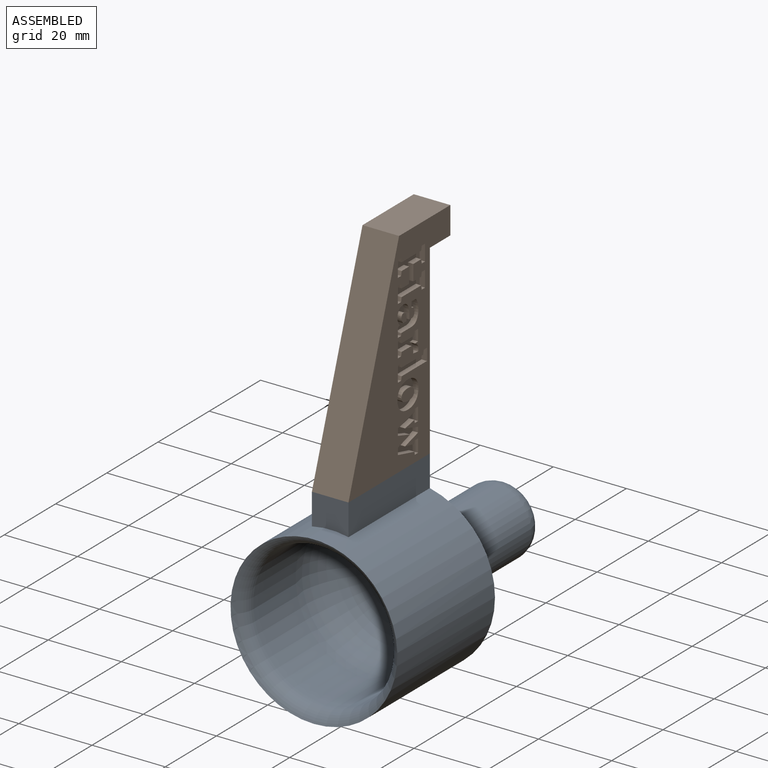
[diagram: assembled view]
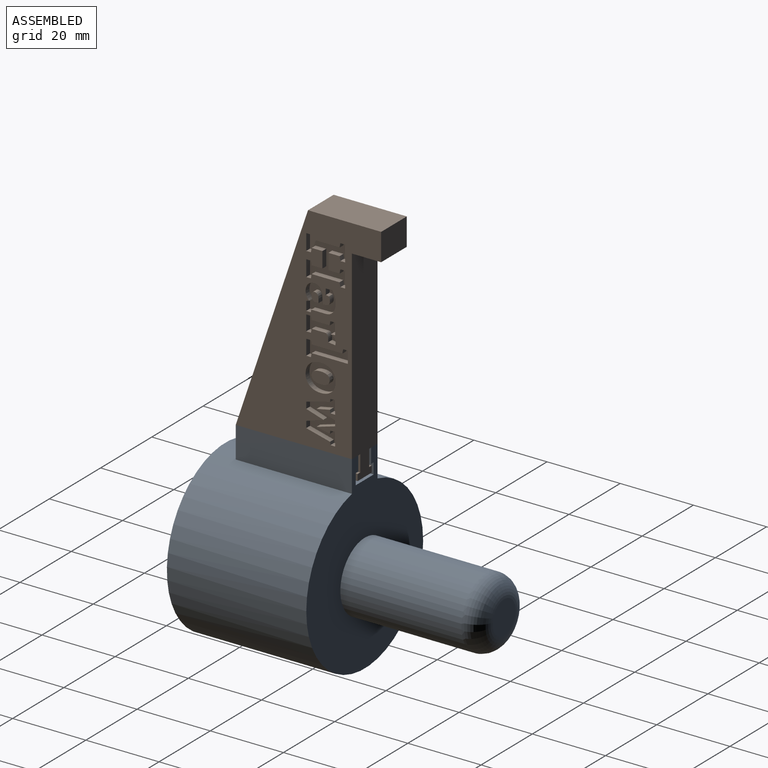
[diagram: assembled view, second angle]
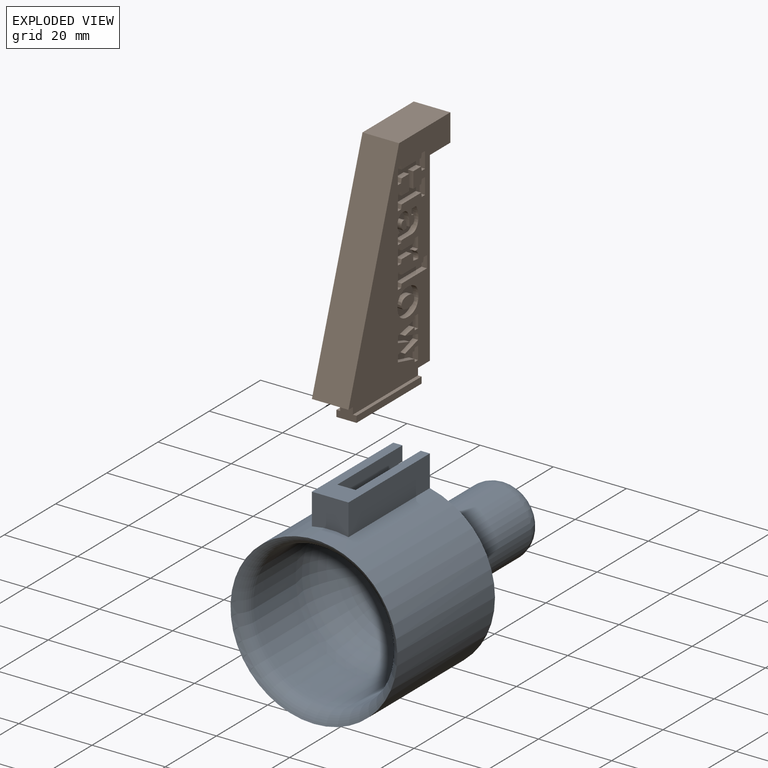
[diagram: exploded view]
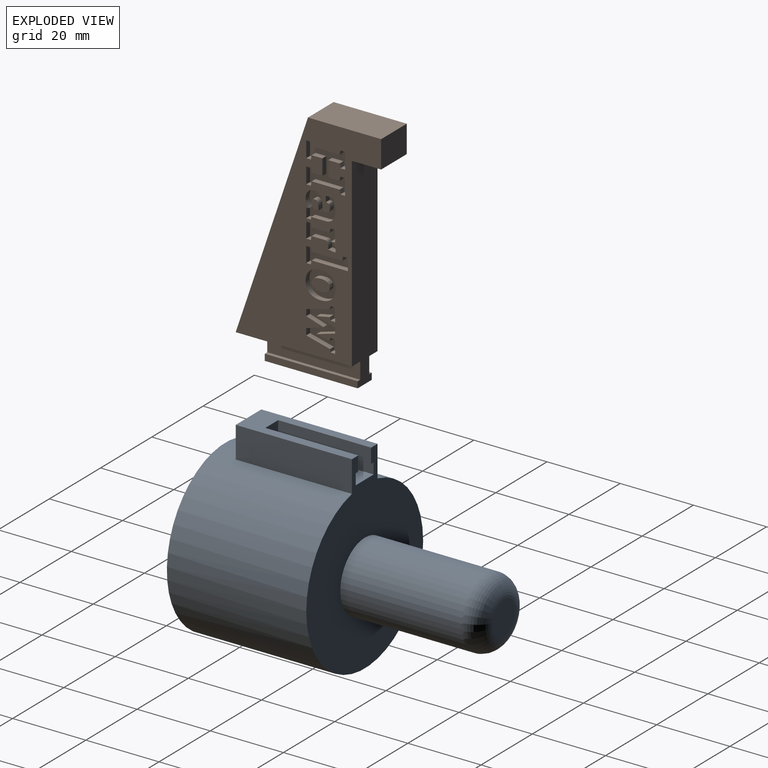
[diagram: exploded view, second angle]
ASSEMBLY  parts=2 mates=3
PART A: 21 faces, bbox 57.6x53.7x76.6 mm
  f0: plane 31.75x10mm, normal (-1,0,0), area 190.5mm2, adj f3,f10,f11,f12,f13,f14,f20
  f1: cylinder r=19.8mm len=39.6mm, axis (0,0,-1), area 2054.9mm2, adj f8,f9
  f2: cylinder r=22.8mm len=45.6mm, axis (0,0,-1), area 5138mm2, adj f3,f8,f10,f11,f12
  f3: plane 53.6x45.6mm, normal (0,0,-1), area 1388.9mm2, adj f0,f2,f5,f10,f11,f13,f14,f15
  f4: plane 9.6x9.6mm, normal (0,0,1), area 72.4mm2, adj f9
  f5: cylinder r=9.53mm len=33.1mm, axis (0,0,1), area 1980.9mm2, adj f3,f7
  f6: plane 9.05x9.05mm, normal (0,0,-1), area 64.3mm2, adj f7
  f7: torus R=4.53mm, axis (0,0,-1), area 380.4mm2, adj f5,f6
  f8: torus R=24.8mm, axis (0,0,1), area 759.2mm2, adj f1,f2
  f9: torus R=4.8mm, axis (0,0,-1), area 2124.3mm2, adj f1,f4
  f10: plane 31.75x8.56mm, normal (0,1,0), area 271.6mm2, adj f0,f2,f3,f12
  f11: plane 31.75x8.56mm, normal (0,-1,0), area 271.6mm2, adj f0,f2,f3,f12
  f12: plane 10x8.56mm, normal (0,0,1), area 81.8mm2, adj f0,f2,f10,f11
  f13: plane 25.4x4mm, normal (0,1,0), area 101.6mm2, adj f0,f3,f19,f20
  f14: plane 25.4x4mm, normal (0,-1,0), area 101.6mm2, adj f0,f3,f15,f20
  f15: plane 25.4x1mm, normal (1,0,0), area 25.4mm2, adj f3,f14,f16,f20
  f16: plane 25.4x3mm, normal (0,-1,0), area 76.2mm2, adj f3,f15,f17,f20
  f17: plane 25.4x7mm, normal (-1,0,0), area 177.8mm2, adj f3,f16,f18,f20
  f18: plane 25.4x3mm, normal (0,1,0), area 76.2mm2, adj f3,f17,f19,f20
  f19: plane 25.4x1mm, normal (1,0,0), area 25.4mm2, adj f3,f13,f18,f20
  f20: plane 7x7mm, normal (0,0,-1), area 41mm2, adj f0,f13,f14,f15,f16,f17,f18,f19
PART B: 304 faces, bbox 64.6x10x39.8 mm
  f0: plane 58.3x39.75mm, normal (0,-1,0), area 1073.1mm2, adj f2,f3,f4,f5,f6,f7,f167,f168
  f1: plane 58.3x39.75mm, normal (0,1,0), area 1073.1mm2, adj f2,f3,f4,f5,f6,f7,f23,f24
  f2: plane 31.75x10mm, normal (1,0,0), area 228.6mm2, adj f0,f1,f3,f7,f8,f14,f15
  f3: plane 58.3x19.75mm, normal (-0.32,0,0.95), area 615.5mm2, adj f0,f1,f2,f4
  f4: plane 20x10mm, normal (-1,0,0), area 200mm2, adj f0,f1,f3,f5
  f5: plane 10x7.5mm, normal (0,0,-1), area 75mm2, adj f0,f1,f4,f6
  f6: plane 10x8mm, normal (1,0,0), area 80mm2, adj f0,f1,f5,f7
  f7: plane 57.05x10mm, normal (0,0,-1), area 533.4mm2, adj f0,f1,f2,f6,f8,f9,f10,f11
  f8: plane 25.4x4.5mm, normal (0,1,0), area 114.3mm2, adj f2,f7,f9,f15
  f9: plane 25.4x1mm, normal (-1,0,0), area 25.4mm2, adj f7,f8,f10,f15
  f10: plane 25.4x1.75mm, normal (0,1,0), area 44.5mm2, adj f7,f9,f11,f15
  f11: plane 25.4x5.5mm, normal (1,0,0), area 139.7mm2, adj f7,f10,f12,f15
  f12: plane 25.4x1.75mm, normal (0,-1,0), area 44.5mm2, adj f7,f11,f13,f15
  f13: plane 25.4x1mm, normal (-1,0,0), area 25.4mm2, adj f7,f12,f14,f15
  f14: plane 25.4x4.5mm, normal (0,-1,0), area 114.3mm2, adj f2,f7,f13,f15
  f15: plane 6.25x5.5mm, normal (0,0,1), area 25.4mm2, adj f2,f8,f9,f10,f11,f12,f13,f14
  f16: extruded ~1.5x0.88mm, area 1.4mm2, adj f17,f50,f51,f158
  f17: extruded ~1.5x0.72mm, area 1.2mm2, adj f16,f18,f51,f158
  f18: extruded ~1.5x0.63mm, area 1.1mm2, adj f17,f19,f51,f158
  f19: extruded ~1.5x0.76mm, area 1.3mm2, adj f18,f20,f51,f158
  f20: extruded ~1.5x1.03mm, area 1.6mm2, adj f19,f21,f51,f158
  f21: plane 1.5x1.09mm, normal (0,0,-1), area 1.6mm2, adj f20,f22,f51,f158
  f22: plane 1.5x1.2mm, normal (1,0,0), area 1.8mm2, adj f21,f50,f51,f158
  f23: extruded ~1.5x0.41mm, area 0.6mm2, adj f1,f24,f49,f51
  f24: plane 2.46x1.5mm, normal (0,0,-1), area 3.7mm2, adj f1,f23,f25,f51
  f25: plane 1.5x1.28mm, normal (-1,0,0), area 1.9mm2, adj f1,f24,f26,f51
  f26: plane 1.5x0.65mm, normal (-0.13,0,0.99), area 1mm2, adj f1,f25,f27,f51
  f27: extruded ~1.5x0.31mm, area 0.5mm2, adj f1,f26,f28,f51
  f28: extruded ~1.5x0.34mm, area 0.5mm2, adj f1,f27,f29,f51
  f29: plane 3.26x1.5mm, normal (-1,0,0), area 4.9mm2, adj f1,f28,f30,f51
  f30: extruded ~2.05x1.5mm, area 3.5mm2, adj f1,f29,f31,f51
  f31: extruded ~2.38x1.5mm, area 3.8mm2, adj f1,f30,f32,f51
  f32: extruded ~1.64x1.5mm, area 2.5mm2, adj f1,f31,f33,f51
  f33: extruded ~1.5x1.34mm, area 2.2mm2, adj f1,f32,f34,f51
  f34: plane 1.75x1.5mm, normal (1,0,0), area 2.6mm2, adj f1,f33,f35,f51
  f35: plane 1.6x1.5mm, normal (0,0,-1), area 2.4mm2, adj f1,f34,f36,f51
  f36: plane 1.5x0.85mm, normal (-0.99,0,-0.16), area 1.3mm2, adj f1,f35,f37,f51
  f37: extruded ~1.5x0.46mm, area 0.8mm2, adj f1,f36,f38,f51
  f38: extruded ~1.5x0.65mm, area 1mm2, adj f1,f37,f39,f51
  f39: extruded ~1.5x0.97mm, area 1.6mm2, adj f1,f38,f40,f51
  f40: extruded ~1.5x0.88mm, area 1.5mm2, adj f1,f39,f41,f51
  f41: plane 1.5x0.78mm, normal (1,0,0), area 1.2mm2, adj f1,f40,f42,f51
  f42: plane 1.5x1.09mm, normal (0,0,1), area 1.6mm2, adj f1,f41,f43,f51
  f43: extruded ~2.61x1.5mm, area 4.1mm2, adj f1,f42,f44,f51
  f44: extruded ~1.71x1.5mm, area 3mm2, adj f1,f43,f45,f51
  f45: extruded ~1.72x1.5mm, area 2.9mm2, adj f1,f44,f46,f51
  f46: extruded ~1.84x1.5mm, area 3mm2, adj f1,f45,f47,f51
  f47: extruded ~1.5x1.24mm, area 1.9mm2, adj f1,f46,f48,f51
  f48: extruded ~1.5x0.92mm, area 1.8mm2, adj f1,f47,f49,f51
  f49: extruded ~1.5x0.42mm, area 0.6mm2, adj f1,f23,f48,f51
  f50: extruded ~1.5x0.61mm, area 1.2mm2, adj f16,f22,f51,f158
  f51: plane 8.19x7.4mm, normal (0,1,0), area 38.4mm2, adj f16,f17,f18,f19,f20,f21,f22,f23
  f52: plane 1.5x0.8mm, normal (-0.13,0,-0.99), area 1.2mm2, adj f1,f53,f75,f76
  f53: plane 1.5x1.28mm, normal (-1,0,0), area 1.9mm2, adj f1,f52,f54,f76
  f54: plane 3.58x1.5mm, normal (0,0,1), area 5.4mm2, adj f1,f53,f55,f76
  f55: plane 1.5x1.28mm, normal (1,0,0), area 1.9mm2, adj f1,f54,f56,f76
  f56: plane 1.5x0.85mm, normal (0.19,0,-0.98), area 1.3mm2, adj f1,f55,f57,f76
  f57: plane 3.62x1.5mm, normal (0.98,0,0.2), area 5.5mm2, adj f1,f56,f58,f76
  f58: plane 1.5x0.04mm, normal (0,0,1), area 0.1mm2, adj f1,f57,f59,f76
  f59: plane 5.07x1.5mm, normal (-0.96,0,0.28), area 7.9mm2, adj f1,f58,f60,f76
  f60: plane 1.5x1.43mm, normal (0,0,1), area 2.1mm2, adj f1,f59,f61,f76
  f61: plane 5.05x1.5mm, normal (0.96,0,0.28), area 7.9mm2, adj f1,f60,f62,f76
  f62: plane 1.5x0.04mm, normal (0,0,1), area 0.1mm2, adj f1,f61,f63,f76
  f63: plane 3.61x1.5mm, normal (-0.98,0,0.2), area 5.5mm2, adj f1,f62,f64,f76
  f64: plane 1.5x0.84mm, normal (-0.19,0,-0.98), area 1.3mm2, adj f1,f63,f65,f76
  f65: plane 1.5x1.28mm, normal (-1,0,0), area 1.9mm2, adj f1,f64,f66,f76
  f66: plane 3.57x1.5mm, normal (0,0,1), area 5.4mm2, adj f1,f65,f67,f76
  f67: plane 1.5x1.28mm, normal (1,0,0), area 1.9mm2, adj f1,f66,f68,f76
  f68: plane 1.5x0.8mm, normal (0.13,0,-0.99), area 1.2mm2, adj f1,f67,f69,f76
  f69: plane 6.51x1.65mm, normal (0.97,0,-0.25), area 10.1mm2, adj f1,f68,f70,f76
  f70: plane 1.77x1.5mm, normal (0,0,-1), area 2.7mm2, adj f1,f69,f71,f76
  f71: plane 4.7x1.5mm, normal (-0.95,0,-0.3), area 7.4mm2, adj f1,f70,f72,f76
  f72: plane 1.5x0.04mm, normal (0,0,-1), area 0.1mm2, adj f1,f71,f73,f76
  f73: plane 4.7x1.5mm, normal (0.95,0,-0.3), area 7.4mm2, adj f1,f72,f74,f76
  f74: plane 1.78x1.5mm, normal (0,0,-1), area 2.7mm2, adj f1,f73,f75,f76
  f75: plane 6.51x1.65mm, normal (-0.97,0,-0.25), area 10.1mm2, adj f1,f52,f74,f76
  f76: plane 11.42x7.89mm, normal (0,1,0), area 51.4mm2, adj f52,f53,f54,f55,f56,f57,f58,f59
  f77: plane 1.5x1.28mm, normal (1,0,0), area 1.9mm2, adj f1,f78,f86,f87
  f78: plane 1.5x1.14mm, normal (0.19,0,-0.98), area 1.7mm2, adj f1,f77,f79,f87
  f79: plane 8.38x1.5mm, normal (1,0,0), area 12.6mm2, adj f1,f78,f80,f87
  f80: plane 1.5x1.03mm, normal (0.21,0,0.98), area 1.6mm2, adj f1,f79,f81,f87
  f81: plane 1.5x1.28mm, normal (1,0,0), area 1.9mm2, adj f1,f80,f82,f87
  f82: plane 4.19x1.5mm, normal (0,0,-1), area 6.3mm2, adj f1,f81,f83,f87
  f83: plane 1.5x1.28mm, normal (-1,0,0), area 1.9mm2, adj f1,f82,f84,f87
  f84: plane 1.5x1.03mm, normal (-0.21,0,0.98), area 1.6mm2, adj f1,f83,f85,f87
  f85: plane 9.88x1.5mm, normal (-1,0,0), area 14.8mm2, adj f1,f84,f86,f87
  f86: plane 3.27x1.5mm, normal (0,0,1), area 4.9mm2, adj f1,f77,f85,f87
  f87: plane 11.38x4.3mm, normal (0,1,0), area 28.7mm2, adj f77,f78,f79,f80,f81,f82,f83,f84
  f88: plane 1.5x1.02mm, normal (0.21,0,0.98), area 1.6mm2, adj f1,f89,f106,f107
  f89: plane 1.5x1.28mm, normal (1,0,0), area 1.9mm2, adj f1,f88,f90,f107
  f90: plane 4.17x1.5mm, normal (0,0,-1), area 6.3mm2, adj f1,f89,f91,f107
  f91: plane 1.5x1.28mm, normal (-1,0,0), area 1.9mm2, adj f1,f90,f92,f107
  f92: plane 1.5x1.02mm, normal (-0.21,0,0.98), area 1.6mm2, adj f1,f91,f93,f107
  f93: plane 3.83x1.5mm, normal (-1,0,0), area 5.8mm2, adj f1,f92,f94,f107
  f94: extruded ~1.5x0.52mm, area 1.1mm2, adj f1,f93,f95,f107
  f95: extruded ~1.5x0.77mm, area 1.2mm2, adj f1,f94,f96,f107
  f96: plane 1.5x0.88mm, normal (0.02,0,-1), area 1.3mm2, adj f1,f95,f97,f107
  f97: plane 1.94x1.5mm, normal (-0.99,0,-0.12), area 2.9mm2, adj f1,f96,f98,f107
  f98: extruded ~1.5x0.31mm, area 0.5mm2, adj f1,f97,f99,f107
  f99: extruded ~1.5x0.35mm, area 0.5mm2, adj f1,f98,f100,f107
  f100: extruded ~1.5x1.01mm, area 1.6mm2, adj f1,f99,f101,f107
  f101: extruded ~1.5x0.95mm, area 1.8mm2, adj f1,f100,f102,f107
  f102: plane 1.5x1.15mm, normal (-1,0,0.08), area 1.7mm2, adj f1,f101,f103,f107
  f103: plane 3.11x1.5mm, normal (0,0,1), area 4.7mm2, adj f1,f102,f104,f107
  f104: plane 1.5x1.28mm, normal (1,0,0), area 1.9mm2, adj f1,f103,f105,f107
  f105: plane 1.5x1.13mm, normal (0.19,0,-0.98), area 1.7mm2, adj f1,f104,f106,f107
  f106: plane 4.89x1.5mm, normal (1,0,0), area 7.3mm2, adj f1,f88,f105,f107
  f107: plane 8.04x5.6mm, normal (0,1,0), area 25.2mm2, adj f88,f89,f90,f91,f92,f93,f94,f95
  f108: extruded ~1.73x1.5mm, area 2.7mm2, adj f109,f127,f128,f159
  f109: plane 1.5x0.15mm, normal (-1,0,0), area 0.2mm2, adj f108,f110,f128,f159
  f110: extruded ~1.71x1.5mm, area 2.7mm2, adj f109,f111,f128,f159
  f111: extruded ~1.5x1.21mm, area 2.2mm2, adj f110,f112,f128,f159
  f112: extruded ~1.5x1.22mm, area 2.2mm2, adj f111,f113,f128,f159
  f113: extruded ~1.71x1.5mm, area 2.7mm2, adj f112,f114,f128,f159
  f114: plane 1.5x0.15mm, normal (1,0,0), area 0.2mm2, adj f113,f115,f128,f159
  f115: extruded ~1.73x1.5mm, area 2.7mm2, adj f114,f116,f128,f159
  f116: extruded ~1.5x1.21mm, area 2.2mm2, adj f115,f127,f128,f159
  f117: extruded ~2.89x1.5mm, area 4.7mm2, adj f1,f118,f126,f128
  f118: plane 1.5x0.15mm, normal (1,0,0), area 0.2mm2, adj f1,f117,f119,f128
  f119: extruded ~2.9x1.5mm, area 4.7mm2, adj f1,f118,f120,f128
  f120: extruded ~2.75x1.5mm, area 4.6mm2, adj f1,f119,f121,f128
  f121: extruded ~2.73x1.5mm, area 4.6mm2, adj f1,f120,f122,f128
  f122: extruded ~2.9x1.5mm, area 4.7mm2, adj f1,f121,f123,f128
  f123: plane 1.5x0.15mm, normal (-1,0,0), area 0.2mm2, adj f1,f122,f124,f128
  f124: extruded ~2.9x1.5mm, area 4.7mm2, adj f1,f123,f125,f128
  f125: extruded ~2.74x1.5mm, area 4.6mm2, adj f1,f124,f126,f128
  f126: extruded ~2.73x1.5mm, area 4.6mm2, adj f1,f117,f125,f128
  f127: extruded ~1.5x1.23mm, area 2.2mm2, adj f108,f116,f128,f159
  f128: plane 8.19x7.45mm, normal (0,1,0), area 36.6mm2, adj f108,f109,f110,f111,f112,f113,f114,f115
  f129: plane 1.5x1.28mm, normal (1,0,0), area 1.9mm2, adj f1,f130,f156,f157
  f130: plane 1.5x1.13mm, normal (0.19,0,-0.98), area 1.7mm2, adj f1,f129,f131,f157
  f131: plane 7.62x1.5mm, normal (1,0,0), area 11.4mm2, adj f1,f130,f132,f157
  f132: plane 1.5x1.13mm, normal (0.19,0,0.98), area 1.7mm2, adj f1,f131,f133,f157
  f133: plane 1.5x1.28mm, normal (1,0,0), area 1.9mm2, adj f1,f132,f134,f157
  f134: plane 4.4x1.5mm, normal (0,0,-1), area 6.6mm2, adj f1,f133,f135,f157
  f135: plane 1.5x1.28mm, normal (-1,0,0), area 1.9mm2, adj f1,f134,f136,f157
  f136: plane 1.5x1.14mm, normal (-0.19,0,0.98), area 1.7mm2, adj f1,f135,f137,f157
  f137: plane 2.92x1.5mm, normal (-1,0,0), area 4.4mm2, adj f1,f136,f138,f157
  f138: plane 4.33x1.5mm, normal (0,0,-1), area 6.5mm2, adj f1,f137,f139,f157
  f139: plane 2.92x1.5mm, normal (1,0,0), area 4.4mm2, adj f1,f138,f140,f157
  f140: plane 1.5x1.14mm, normal (0.19,0,0.98), area 1.7mm2, adj f1,f139,f141,f157
  f141: plane 1.5x1.28mm, normal (1,0,0), area 1.9mm2, adj f1,f140,f142,f157
  f142: plane 4.4x1.5mm, normal (0,0,-1), area 6.6mm2, adj f1,f141,f143,f157
  f143: plane 1.5x1.28mm, normal (-1,0,0), area 1.9mm2, adj f1,f142,f144,f157
  f144: plane 1.5x1.14mm, normal (-0.19,0,0.98), area 1.7mm2, adj f1,f143,f145,f157
  f145: plane 7.62x1.5mm, normal (-1,0,0), area 11.4mm2, adj f1,f144,f146,f157
  f146: plane 1.5x1.14mm, normal (-0.19,0,-0.98), area 1.7mm2, adj f1,f145,f147,f157
  f147: plane 1.5x1.28mm, normal (-1,0,0), area 1.9mm2, adj f1,f146,f148,f157
  f148: plane 4.4x1.5mm, normal (0,0,1), area 6.6mm2, adj f1,f147,f149,f157
  f149: plane 1.5x1.28mm, normal (1,0,0), area 1.9mm2, adj f1,f148,f150,f157
  f150: plane 1.5x1.14mm, normal (0.19,0,-0.98), area 1.7mm2, adj f1,f149,f151,f157
  f151: plane 3.06x1.5mm, normal (1,0,0), area 4.6mm2, adj f1,f150,f152,f157
  f152: plane 4.33x1.5mm, normal (0,0,1), area 6.5mm2, adj f1,f151,f153,f157
  f153: plane 3.06x1.5mm, normal (-1,0,0), area 4.6mm2, adj f1,f152,f154,f157
  f154: plane 1.5x1.14mm, normal (-0.19,0,-0.98), area 1.7mm2, adj f1,f153,f155,f157
  f155: plane 1.5x1.28mm, normal (-1,0,0), area 1.9mm2, adj f1,f154,f156,f157
  f156: plane 4.4x1.5mm, normal (0,0,1), area 6.6mm2, adj f1,f129,f155,f157
  f157: plane 10.85x10.62mm, normal (0,1,0), area 64.9mm2, adj f129,f130,f131,f132,f133,f134,f135,f136
  f158: plane 2.46x1.94mm, normal (0,1,0), area 4mm2, adj f16,f17,f18,f19,f20,f21,f22,f50
  f159: plane 4.92x3.2mm, normal (0,1,0), area 13.1mm2, adj f108,f109,f110,f111,f112,f113,f114,f115
  f160: extruded ~1.5x0.88mm, area 1.4mm2, adj f161,f194,f195,f302
  f161: extruded ~1.5x0.72mm, area 1.2mm2, adj f160,f162,f195,f302
  f162: extruded ~1.5x0.63mm, area 1.1mm2, adj f161,f163,f195,f302
  f163: extruded ~1.5x0.76mm, area 1.3mm2, adj f162,f164,f195,f302
  f164: extruded ~1.5x1.03mm, area 1.6mm2, adj f163,f165,f195,f302
  f165: plane 1.5x1.09mm, normal (0,0,-1), area 1.6mm2, adj f164,f166,f195,f302
  f166: plane 1.5x1.2mm, normal (-1,0,0), area 1.8mm2, adj f165,f194,f195,f302
  f167: extruded ~1.5x0.41mm, area 0.6mm2, adj f0,f168,f193,f195
  f168: plane 2.46x1.5mm, normal (0,0,-1), area 3.7mm2, adj f0,f167,f169,f195
  f169: plane 1.5x1.28mm, normal (1,0,0), area 1.9mm2, adj f0,f168,f170,f195
  f170: plane 1.5x0.65mm, normal (0.13,0,0.99), area 1mm2, adj f0,f169,f171,f195
  f171: extruded ~1.5x0.31mm, area 0.5mm2, adj f0,f170,f172,f195
  f172: extruded ~1.5x0.34mm, area 0.5mm2, adj f0,f171,f173,f195
  f173: plane 3.26x1.5mm, normal (1,0,0), area 4.9mm2, adj f0,f172,f174,f195
  f174: extruded ~2.05x1.5mm, area 3.5mm2, adj f0,f173,f175,f195
  f175: extruded ~2.38x1.5mm, area 3.8mm2, adj f0,f174,f176,f195
  f176: extruded ~1.64x1.5mm, area 2.5mm2, adj f0,f175,f177,f195
  f177: extruded ~1.5x1.34mm, area 2.2mm2, adj f0,f176,f178,f195
  f178: plane 1.75x1.5mm, normal (-1,0,0), area 2.6mm2, adj f0,f177,f179,f195
  f179: plane 1.6x1.5mm, normal (0,0,-1), area 2.4mm2, adj f0,f178,f180,f195
  f180: plane 1.5x0.85mm, normal (0.99,0,-0.16), area 1.3mm2, adj f0,f179,f181,f195
  f181: extruded ~1.5x0.46mm, area 0.8mm2, adj f0,f180,f182,f195
  f182: extruded ~1.5x0.65mm, area 1mm2, adj f0,f181,f183,f195
  f183: extruded ~1.5x0.97mm, area 1.6mm2, adj f0,f182,f184,f195
  f184: extruded ~1.5x0.88mm, area 1.5mm2, adj f0,f183,f185,f195
  f185: plane 1.5x0.78mm, normal (-1,0,0), area 1.2mm2, adj f0,f184,f186,f195
  f186: plane 1.5x1.09mm, normal (0,0,1), area 1.6mm2, adj f0,f185,f187,f195
  f187: extruded ~2.61x1.5mm, area 4.1mm2, adj f0,f186,f188,f195
  f188: extruded ~1.71x1.5mm, area 3mm2, adj f0,f187,f189,f195
  f189: extruded ~1.72x1.5mm, area 2.9mm2, adj f0,f188,f190,f195
  f190: extruded ~1.84x1.5mm, area 3mm2, adj f0,f189,f191,f195
  f191: extruded ~1.5x1.24mm, area 1.9mm2, adj f0,f190,f192,f195
  f192: extruded ~1.5x0.92mm, area 1.8mm2, adj f0,f191,f193,f195
  f193: extruded ~1.5x0.42mm, area 0.6mm2, adj f0,f167,f192,f195
  f194: extruded ~1.5x0.61mm, area 1.2mm2, adj f160,f166,f195,f302
  f195: plane 8.19x7.4mm, normal (0,-1,0), area 38.4mm2, adj f160,f161,f162,f163,f164,f165,f166,f167
  f196: plane 1.5x0.8mm, normal (0.13,0,-0.99), area 1.2mm2, adj f0,f197,f219,f220
  f197: plane 1.5x1.28mm, normal (1,0,0), area 1.9mm2, adj f0,f196,f198,f220
  f198: plane 3.58x1.5mm, normal (0,0,1), area 5.4mm2, adj f0,f197,f199,f220
  f199: plane 1.5x1.28mm, normal (-1,0,0), area 1.9mm2, adj f0,f198,f200,f220
  f200: plane 1.5x0.85mm, normal (-0.19,0,-0.98), area 1.3mm2, adj f0,f199,f201,f220
  f201: plane 3.62x1.5mm, normal (-0.98,0,0.2), area 5.5mm2, adj f0,f200,f202,f220
  f202: plane 1.5x0.04mm, normal (0,0,1), area 0.1mm2, adj f0,f201,f203,f220
  f203: plane 5.07x1.5mm, normal (0.96,0,0.28), area 7.9mm2, adj f0,f202,f204,f220
  f204: plane 1.5x1.43mm, normal (0,0,1), area 2.1mm2, adj f0,f203,f205,f220
  f205: plane 5.05x1.5mm, normal (-0.96,0,0.28), area 7.9mm2, adj f0,f204,f206,f220
  f206: plane 1.5x0.04mm, normal (0,0,1), area 0.1mm2, adj f0,f205,f207,f220
  f207: plane 3.61x1.5mm, normal (0.98,0,0.2), area 5.5mm2, adj f0,f206,f208,f220
  f208: plane 1.5x0.84mm, normal (0.19,0,-0.98), area 1.3mm2, adj f0,f207,f209,f220
  f209: plane 1.5x1.28mm, normal (1,0,0), area 1.9mm2, adj f0,f208,f210,f220
  f210: plane 3.57x1.5mm, normal (0,0,1), area 5.4mm2, adj f0,f209,f211,f220
  f211: plane 1.5x1.28mm, normal (-1,0,0), area 1.9mm2, adj f0,f210,f212,f220
  f212: plane 1.5x0.8mm, normal (-0.13,0,-0.99), area 1.2mm2, adj f0,f211,f213,f220
  f213: plane 6.51x1.65mm, normal (-0.97,0,-0.25), area 10.1mm2, adj f0,f212,f214,f220
  f214: plane 1.77x1.5mm, normal (0,0,-1), area 2.7mm2, adj f0,f213,f215,f220
  f215: plane 4.7x1.5mm, normal (0.95,0,-0.3), area 7.4mm2, adj f0,f214,f216,f220
  f216: plane 1.5x0.04mm, normal (0,0,-1), area 0.1mm2, adj f0,f215,f217,f220
  f217: plane 4.7x1.5mm, normal (-0.95,0,-0.3), area 7.4mm2, adj f0,f216,f218,f220
  f218: plane 1.78x1.5mm, normal (0,0,-1), area 2.7mm2, adj f0,f217,f219,f220
  f219: plane 6.51x1.65mm, normal (0.97,0,-0.25), area 10.1mm2, adj f0,f196,f218,f220
  f220: plane 11.42x7.89mm, normal (0,-1,0), area 51.4mm2, adj f196,f197,f198,f199,f200,f201,f202,f203
  f221: plane 1.5x1.28mm, normal (-1,0,0), area 1.9mm2, adj f0,f222,f230,f231
  f222: plane 1.5x1.14mm, normal (-0.19,0,-0.98), area 1.7mm2, adj f0,f221,f223,f231
  f223: plane 8.38x1.5mm, normal (-1,0,0), area 12.6mm2, adj f0,f222,f224,f231
  f224: plane 1.5x1.03mm, normal (-0.21,0,0.98), area 1.6mm2, adj f0,f223,f225,f231
  f225: plane 1.5x1.28mm, normal (-1,0,0), area 1.9mm2, adj f0,f224,f226,f231
  f226: plane 4.19x1.5mm, normal (0,0,-1), area 6.3mm2, adj f0,f225,f227,f231
  f227: plane 1.5x1.28mm, normal (1,0,0), area 1.9mm2, adj f0,f226,f228,f231
  f228: plane 1.5x1.03mm, normal (0.21,0,0.98), area 1.6mm2, adj f0,f227,f229,f231
  f229: plane 9.88x1.5mm, normal (1,0,0), area 14.8mm2, adj f0,f228,f230,f231
  f230: plane 3.27x1.5mm, normal (0,0,1), area 4.9mm2, adj f0,f221,f229,f231
  f231: plane 11.38x4.3mm, normal (0,-1,0), area 28.7mm2, adj f221,f222,f223,f224,f225,f226,f227,f228
  f232: plane 1.5x1.02mm, normal (-0.21,0,0.98), area 1.6mm2, adj f0,f233,f250,f251
  f233: plane 1.5x1.28mm, normal (-1,0,0), area 1.9mm2, adj f0,f232,f234,f251
  f234: plane 4.17x1.5mm, normal (0,0,-1), area 6.3mm2, adj f0,f233,f235,f251
  f235: plane 1.5x1.28mm, normal (1,0,0), area 1.9mm2, adj f0,f234,f236,f251
  f236: plane 1.5x1.02mm, normal (0.21,0,0.98), area 1.6mm2, adj f0,f235,f237,f251
  f237: plane 3.83x1.5mm, normal (1,0,0), area 5.8mm2, adj f0,f236,f238,f251
  f238: extruded ~1.5x0.52mm, area 1.1mm2, adj f0,f237,f239,f251
  f239: extruded ~1.5x0.77mm, area 1.2mm2, adj f0,f238,f240,f251
  f240: plane 1.5x0.88mm, normal (-0.02,0,-1), area 1.3mm2, adj f0,f239,f241,f251
  f241: plane 1.94x1.5mm, normal (0.99,0,-0.12), area 2.9mm2, adj f0,f240,f242,f251
  f242: extruded ~1.5x0.31mm, area 0.5mm2, adj f0,f241,f243,f251
  f243: extruded ~1.5x0.35mm, area 0.5mm2, adj f0,f242,f244,f251
  f244: extruded ~1.5x1.01mm, area 1.6mm2, adj f0,f243,f245,f251
  f245: extruded ~1.5x0.95mm, area 1.8mm2, adj f0,f244,f246,f251
  f246: plane 1.5x1.15mm, normal (1,0,0.08), area 1.7mm2, adj f0,f245,f247,f251
  f247: plane 3.11x1.5mm, normal (0,0,1), area 4.7mm2, adj f0,f246,f248,f251
  f248: plane 1.5x1.28mm, normal (-1,0,0), area 1.9mm2, adj f0,f247,f249,f251
  f249: plane 1.5x1.13mm, normal (-0.19,0,-0.98), area 1.7mm2, adj f0,f248,f250,f251
  f250: plane 4.89x1.5mm, normal (-1,0,0), area 7.3mm2, adj f0,f232,f249,f251
  f251: plane 8.04x5.6mm, normal (0,-1,0), area 25.2mm2, adj f232,f233,f234,f235,f236,f237,f238,f239
  f252: extruded ~1.73x1.5mm, area 2.7mm2, adj f253,f271,f272,f303
  f253: plane 1.5x0.15mm, normal (1,0,0), area 0.2mm2, adj f252,f254,f272,f303
  f254: extruded ~1.71x1.5mm, area 2.7mm2, adj f253,f255,f272,f303
  f255: extruded ~1.5x1.21mm, area 2.2mm2, adj f254,f256,f272,f303
  f256: extruded ~1.5x1.22mm, area 2.2mm2, adj f255,f257,f272,f303
  f257: extruded ~1.71x1.5mm, area 2.7mm2, adj f256,f258,f272,f303
  f258: plane 1.5x0.15mm, normal (-1,0,0), area 0.2mm2, adj f257,f259,f272,f303
  f259: extruded ~1.73x1.5mm, area 2.7mm2, adj f258,f260,f272,f303
  f260: extruded ~1.5x1.21mm, area 2.2mm2, adj f259,f271,f272,f303
  f261: extruded ~2.89x1.5mm, area 4.7mm2, adj f0,f262,f270,f272
  f262: plane 1.5x0.15mm, normal (-1,0,0), area 0.2mm2, adj f0,f261,f263,f272
  f263: extruded ~2.9x1.5mm, area 4.7mm2, adj f0,f262,f264,f272
  f264: extruded ~2.75x1.5mm, area 4.6mm2, adj f0,f263,f265,f272
  f265: extruded ~2.73x1.5mm, area 4.6mm2, adj f0,f264,f266,f272
  f266: extruded ~2.9x1.5mm, area 4.7mm2, adj f0,f265,f267,f272
  f267: plane 1.5x0.15mm, normal (1,0,0), area 0.2mm2, adj f0,f266,f268,f272
  f268: extruded ~2.9x1.5mm, area 4.7mm2, adj f0,f267,f269,f272
  f269: extruded ~2.74x1.5mm, area 4.6mm2, adj f0,f268,f270,f272
  f270: extruded ~2.73x1.5mm, area 4.6mm2, adj f0,f261,f269,f272
  f271: extruded ~1.5x1.23mm, area 2.2mm2, adj f252,f260,f272,f303
  f272: plane 8.19x7.45mm, normal (0,-1,0), area 36.6mm2, adj f252,f253,f254,f255,f256,f257,f258,f259
  f273: plane 1.5x1.28mm, normal (-1,0,0), area 1.9mm2, adj f0,f274,f300,f301
  f274: plane 1.5x1.13mm, normal (-0.19,0,-0.98), area 1.7mm2, adj f0,f273,f275,f301
  f275: plane 7.62x1.5mm, normal (-1,0,0), area 11.4mm2, adj f0,f274,f276,f301
  f276: plane 1.5x1.13mm, normal (-0.19,0,0.98), area 1.7mm2, adj f0,f275,f277,f301
  f277: plane 1.5x1.28mm, normal (-1,0,0), area 1.9mm2, adj f0,f276,f278,f301
  f278: plane 4.4x1.5mm, normal (0,0,-1), area 6.6mm2, adj f0,f277,f279,f301
  f279: plane 1.5x1.28mm, normal (1,0,0), area 1.9mm2, adj f0,f278,f280,f301
  f280: plane 1.5x1.14mm, normal (0.19,0,0.98), area 1.7mm2, adj f0,f279,f281,f301
  f281: plane 2.92x1.5mm, normal (1,0,0), area 4.4mm2, adj f0,f280,f282,f301
  f282: plane 4.33x1.5mm, normal (0,0,-1), area 6.5mm2, adj f0,f281,f283,f301
  f283: plane 2.92x1.5mm, normal (-1,0,0), area 4.4mm2, adj f0,f282,f284,f301
  f284: plane 1.5x1.14mm, normal (-0.19,0,0.98), area 1.7mm2, adj f0,f283,f285,f301
  f285: plane 1.5x1.28mm, normal (-1,0,0), area 1.9mm2, adj f0,f284,f286,f301
  f286: plane 4.4x1.5mm, normal (0,0,-1), area 6.6mm2, adj f0,f285,f287,f301
  f287: plane 1.5x1.28mm, normal (1,0,0), area 1.9mm2, adj f0,f286,f288,f301
  f288: plane 1.5x1.14mm, normal (0.19,0,0.98), area 1.7mm2, adj f0,f287,f289,f301
  f289: plane 7.62x1.5mm, normal (1,0,0), area 11.4mm2, adj f0,f288,f290,f301
  f290: plane 1.5x1.14mm, normal (0.19,0,-0.98), area 1.7mm2, adj f0,f289,f291,f301
  f291: plane 1.5x1.28mm, normal (1,0,0), area 1.9mm2, adj f0,f290,f292,f301
  f292: plane 4.4x1.5mm, normal (0,0,1), area 6.6mm2, adj f0,f291,f293,f301
  f293: plane 1.5x1.28mm, normal (-1,0,0), area 1.9mm2, adj f0,f292,f294,f301
  f294: plane 1.5x1.14mm, normal (-0.19,0,-0.98), area 1.7mm2, adj f0,f293,f295,f301
  f295: plane 3.06x1.5mm, normal (-1,0,0), area 4.6mm2, adj f0,f294,f296,f301
  f296: plane 4.33x1.5mm, normal (0,0,1), area 6.5mm2, adj f0,f295,f297,f301
  f297: plane 3.06x1.5mm, normal (1,0,0), area 4.6mm2, adj f0,f296,f298,f301
  f298: plane 1.5x1.14mm, normal (0.19,0,-0.98), area 1.7mm2, adj f0,f297,f299,f301
  f299: plane 1.5x1.28mm, normal (1,0,0), area 1.9mm2, adj f0,f298,f300,f301
  f300: plane 4.4x1.5mm, normal (0,0,1), area 6.6mm2, adj f0,f273,f299,f301
  f301: plane 10.85x10.62mm, normal (0,-1,0), area 64.9mm2, adj f273,f274,f275,f276,f277,f278,f279,f280
  f302: plane 2.46x1.94mm, normal (0,-1,0), area 4mm2, adj f160,f161,f162,f163,f164,f165,f166,f194
  f303: plane 4.92x3.2mm, normal (0,-1,0), area 13.1mm2, adj f252,f253,f254,f255,f256,f257,f258,f259
PLACE A rot(axis=(0.58,0.58,-0.58),120deg) t=(-43.11,-7.97,-0.63)mm
PLACE B rot(axis=(0.58,0.58,-0.58),120deg) t=(-38.11,-7.97,-75.74)mm
MATE planar A.f10 <-> B.f1  axis (1,0,0) through (-38.11,-23.84,25.89)mm
MATE planar A.f0 <-> B.f2  axis (0,0,1) through (-48.11,-7.97,30.17)mm
MATE planar B.f15 <-> A.f20  axis (0,-1,0) through (-43.11,-33.37,26.73)mm
